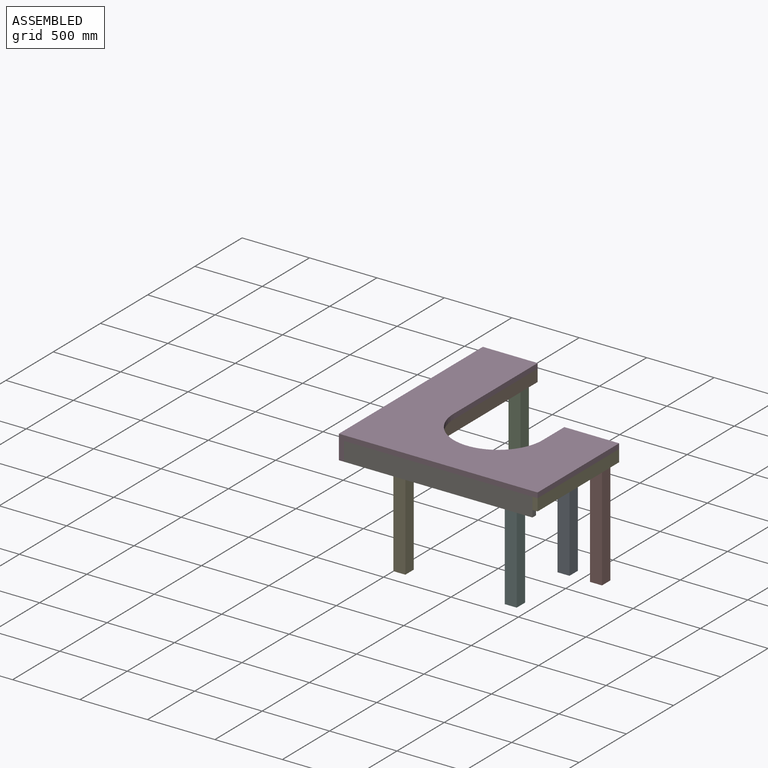
[diagram: assembled view]
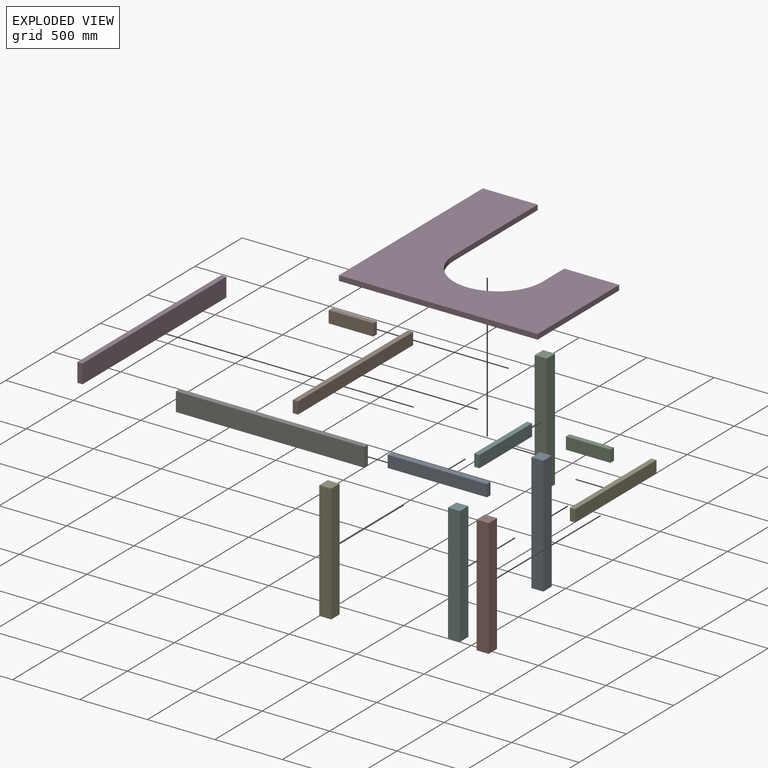
[diagram: exploded view]
GUIDED TOUR — MATED ASSEMBLY (Onshape document 863e2e0de1fe9f360ce83798, AutoMate assembly 863e2e0de1fe9f360ce83798_d64756f79ffccb4eee5b5655_c4ad5a41640e280d9338c394_default)

This assembly has 14 components, labeled P0..P13 below (a component is one placed occurrence of a part; the same part can appear more than once), held together by 13 mates. A mate is a constraint between two components; its type names the relative motion it leaves free:
  FASTENED — locks the two components together rigidly (no relative motion).
Axis/direction vectors are unit vectors and 'through' points are millimeter coordinates, both in the assembly's world frame.

MATES
  1. FASTENED "Fastened 6": P13 <-> P8, direction (0.000, -1.000, 0.000) through (368.30, -330.20, -88.90) mm
  2. FASTENED "Fastened 8": P8 <-> P1, direction (0.000, 1.000, 0.000) through (-368.30, -330.20, -88.90) mm
  3. FASTENED "Fastened 2": P11 <-> P6, direction (1.000, 0.000, 0.000) through (-698.50, -635.00, 0.00) mm
  4. FASTENED "Fastened 15": P8 <-> P5, direction (0.000, -1.000, 0.000) through (368.30, -368.30, 0.00) mm
  5. FASTENED "Fastened 10": P2 <-> P7, direction (0.000, -1.000, 0.000) through (698.50, 190.50, 0.00) mm
  6. FASTENED "Fastened 11": P9 <-> P10, direction (0.000, -1.000, 0.000) through (-368.30, 850.90, 0.00) mm
  7. FASTENED "Fastened 4": P4 <-> P2, direction (-1.000, 0.000, 0.000) through (698.50, 228.60, 0.00) mm
  8. FASTENED "Fastened 16": P8 <-> P12, direction (0.000, -1.000, 0.000) through (-368.30, -368.30, 0.00) mm
  9. FASTENED "Fastened 1": P11 <-> P3, direction (0.000, 0.000, 1.000) through (-736.60, -635.00, 0.00) mm
  10. FASTENED "Fastened 5": P2 <-> P13, direction (-1.000, 0.000, 0.000) through (368.30, 228.60, 0.00) mm
  11. FASTENED "Fastened 3": P6 <-> P4, direction (1.000, 0.000, 0.000) through (698.50, -635.00, 0.00) mm
  12. FASTENED "Fastened 9": P2 <-> P0, direction (0.000, -1.000, 0.000) through (368.30, 190.50, 0.00) mm
  13. FASTENED "Fastened 7": P9 <-> P1, direction (1.000, 0.000, 0.000) through (-368.30, 889.00, -88.90) mm

ASSEMBLY ORDER
  1. P2 — the base component [order verified]
  2. P0 [order verified]
  3. P13 [order verified]
  4. P4 [order verified]
  5. P9 [order verified]
  6. P10 [order verified]
  7. P7 [order verified]
  8. P8 [order verified]
  9. P12 [order verified]
  10. P5 [order verified]
  11. P6 [order verified]
  12. P1 [order verified]
  13. P11 [order verified]
  14. P3 [order verified]
Order-tag legend:
  [order verified] — this step's position reverses a verified removal order: the component was checked to insert without passing through the ones already placed.

Of the 14 components, 14 carry the full construction recipe — the FeatureScript program that regenerates the part's solid from scratch; the rest are supplied as boundary geometry only.
Because this assembly has more than 12 components, the tour below covers the 12 most significant ones individually (every recipe-attached component first, then the largest by part volume), in assembly order; the remaining 2 are summarized together in a grouped section at the end.
Each toured component is shown spotlighted twice — in the assembled view, then in the exploded view, where a leader line traces a displaced component back to its assembled socket (saturated green if recipe-attached, orange if geometry-only; every other component desaturated gray) — followed by its recipe or geometry summary and the mates that hold it.
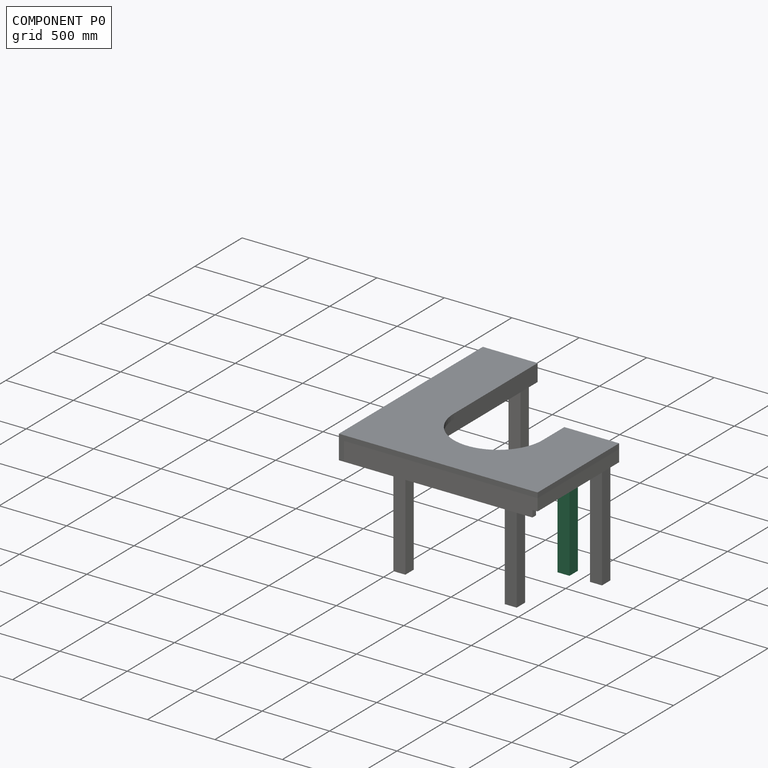
[diagram: component P0 — assembled]
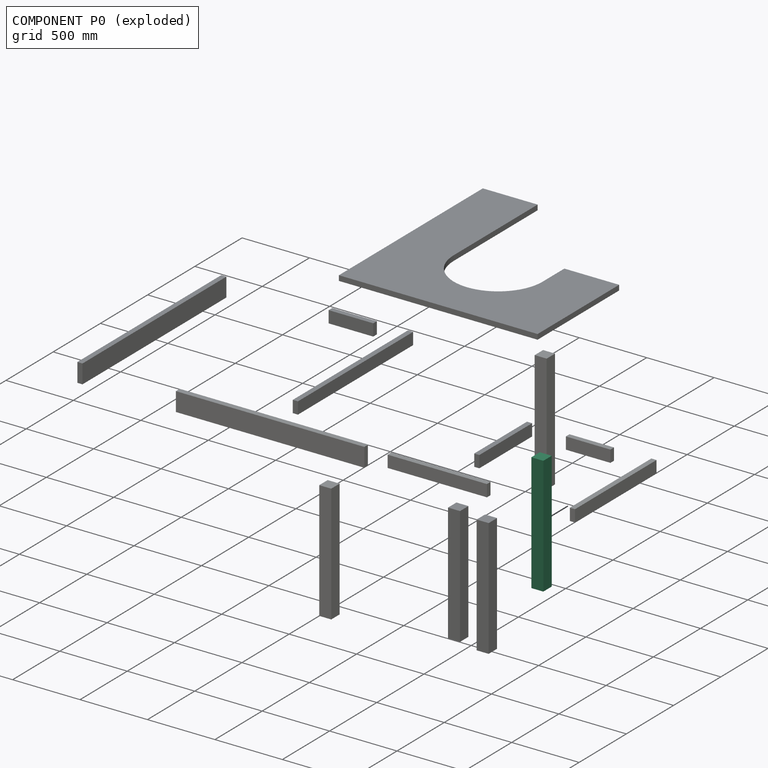
[diagram: component P0 — exploded]
COMPONENT P0 — recipe-attached (CADFS 00414338, mesh-verified: the recipe's output STEP matches this component's geometry to below the mesh-comparison resolution (tessellation chordal tolerance ~1.33 mm)).
Held by: FASTENED mate "Fastened 9" to P2.
Construction recipe (FeatureScript — the CAD program that rebuilds this solid; sketch coordinates are in the units given by the * unit suffixes, e.g. mm):

FeatureScript 1511;
import(path : "onshape/std/geometry.fs", version : "1511.0");
import(path : "onshape/std/common.fs", version : "1511.0");
const mm = millimeter;
const VERTEX = EntityType.VERTEX;
const EDGE = EntityType.EDGE;
const FACE = EntityType.FACE;
const BODY = EntityType.BODY;
function v(x, y){return vector(x, y);}
function OD(order){return orderDisambiguation(order);}
function OSD(set){return originalSetDisambiguation(set);}
function TD(topology){return topologyDisambiguation(topology);}
function TDD(query){return trueDependencyDisambiguation(query);}
function sQuery(a, b, c) {return sketchEntityQuery(a, b, c);}

annotation { "Feature Type Name" : "Feature", "Feature Type Description" : "" }
export const myFeature = defineFeature(function(context is Context, id is Id, definition is map)
    precondition{}
    {
        {
            var Q0;
            Q0=qCreatedBy(makeId("Top.planeOp"),FACE);
            var sketch = newSketch(context, id + "F0", { "sketchPlane" : qUnion([Q0])});
            skLineSegment(sketch, "E0.bottom", {"start": v(44.45, 44.45) * mm, "end": v(-44.45, 44.45) * mm});
            skLineSegment(sketch, "E0.top", {"start": v(44.45, -44.45) * mm, "end": v(-44.45, -44.45) * mm});
            skLineSegment(sketch, "E0.left", {"start": v(44.45, 44.45) * mm, "end": v(44.45, -44.45) * mm});
            skLineSegment(sketch, "E0.right", {"start": v(-44.45, 44.45) * mm, "end": v(-44.45, -44.45) * mm});
            skPoint(sketch, "E0.middle", {"position": v(0, 0) * mm});
            skSolve(sketch);
        }
        {
            var Q0;
            Q0 = qSketchRegion(id + "F0", true);
            extrude(context, id + "F1", {"entities" : qUnion([Q0]), "depth" : 876.3 * mm});
        }
    });
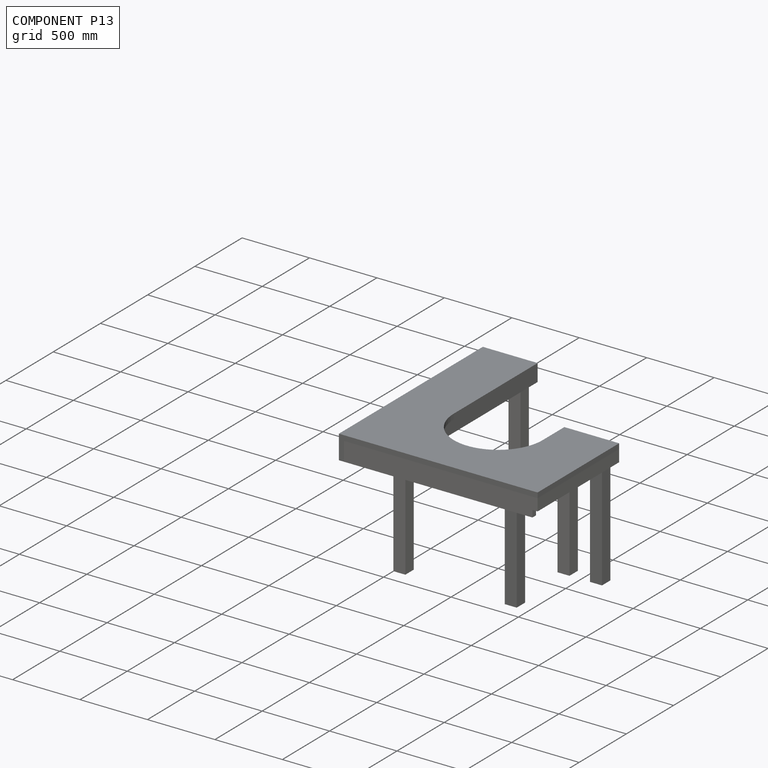
[diagram: component P13 — assembled]
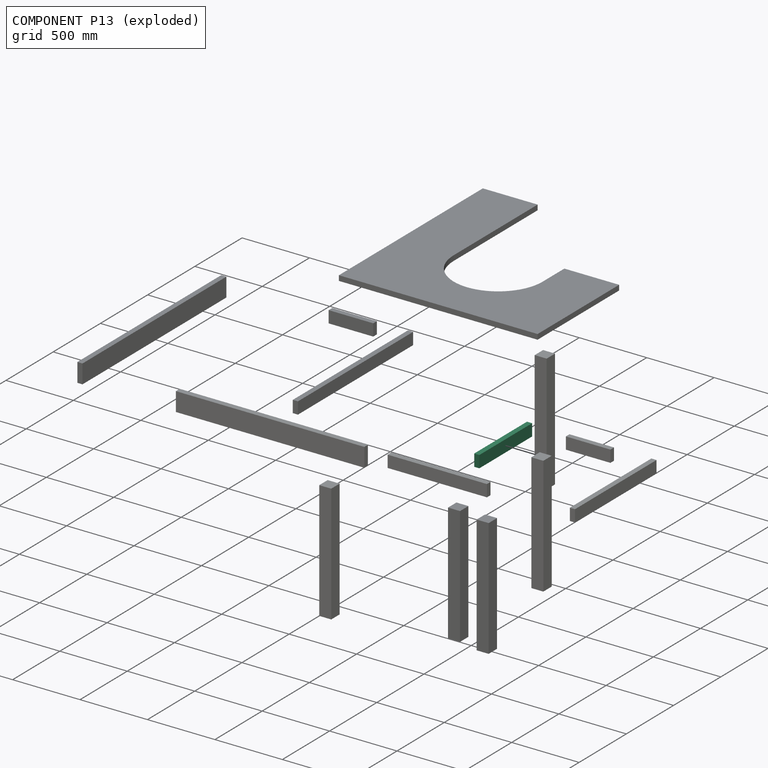
[diagram: component P13 — exploded]
COMPONENT P13 — recipe-attached (CADFS 00414335, mesh-verified: the recipe's output STEP matches this component's geometry to below the mesh-comparison resolution (tessellation chordal tolerance ~0.851 mm)).
Held by: FASTENED mate "Fastened 6" to P8; FASTENED mate "Fastened 5" to P2.
Construction recipe (FeatureScript — the CAD program that rebuilds this solid; sketch coordinates are in the units given by the * unit suffixes, e.g. mm):

FeatureScript 1511;
import(path : "onshape/std/geometry.fs", version : "1511.0");
import(path : "onshape/std/common.fs", version : "1511.0");
const mm = millimeter;
const VERTEX = EntityType.VERTEX;
const EDGE = EntityType.EDGE;
const FACE = EntityType.FACE;
const BODY = EntityType.BODY;
function v(x, y){return vector(x, y);}
function OD(order){return orderDisambiguation(order);}
function OSD(set){return originalSetDisambiguation(set);}
function TD(topology){return topologyDisambiguation(topology);}
function TDD(query){return trueDependencyDisambiguation(query);}
function sQuery(a, b, c) {return sketchEntityQuery(a, b, c);}

annotation { "Feature Type Name" : "Feature", "Feature Type Description" : "" }
export const myFeature = defineFeature(function(context is Context, id is Id, definition is map)
    precondition{}
    {
        {
            var Q0;
            Q0=qCreatedBy(makeId("Top.planeOp"),FACE);
            var sketch = newSketch(context, id + "F0", { "sketchPlane" : qUnion([Q0])});
            skLineSegment(sketch, "E0.bottom", {"start": v(-19.05, -279.4) * mm, "end": v(19.05, -279.4) * mm});
            skLineSegment(sketch, "E0.top", {"start": v(-19.05, 279.4) * mm, "end": v(19.05, 279.4) * mm});
            skLineSegment(sketch, "E0.left", {"start": v(-19.05, -279.4) * mm, "end": v(-19.05, 279.4) * mm});
            skLineSegment(sketch, "E0.right", {"start": v(19.05, -279.4) * mm, "end": v(19.05, 279.4) * mm});
            skPoint(sketch, "E0.middle", {"position": v(0, 0) * mm});
            skSolve(sketch);
        }
        {
            var Q0;
            Q0 = qSketchRegion(id + "F0", true);
            extrude(context, id + "F1", {"entities" : qUnion([Q0]), "depth" : 88.9 * mm});
        }
    });
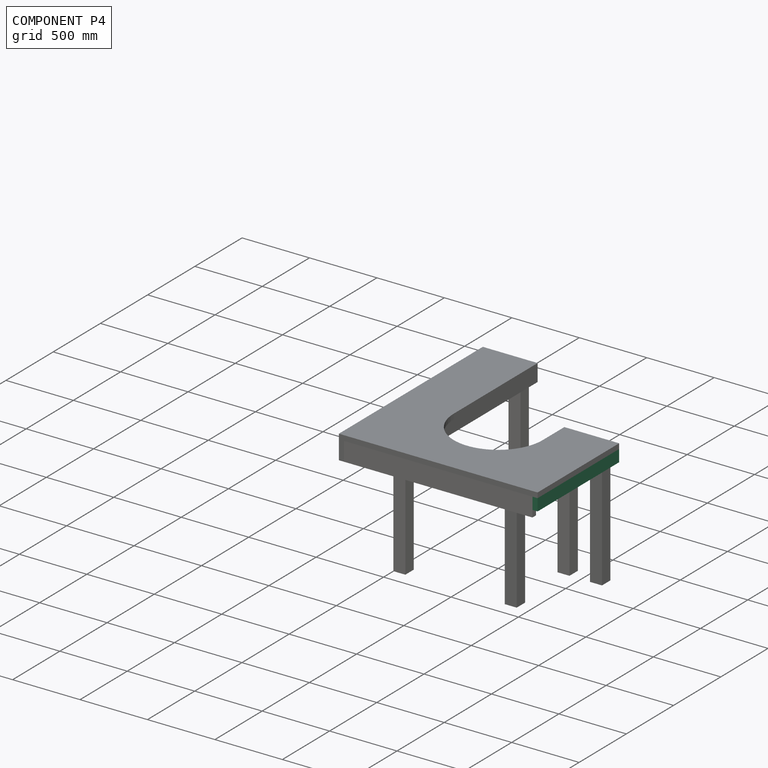
[diagram: component P4 — assembled]
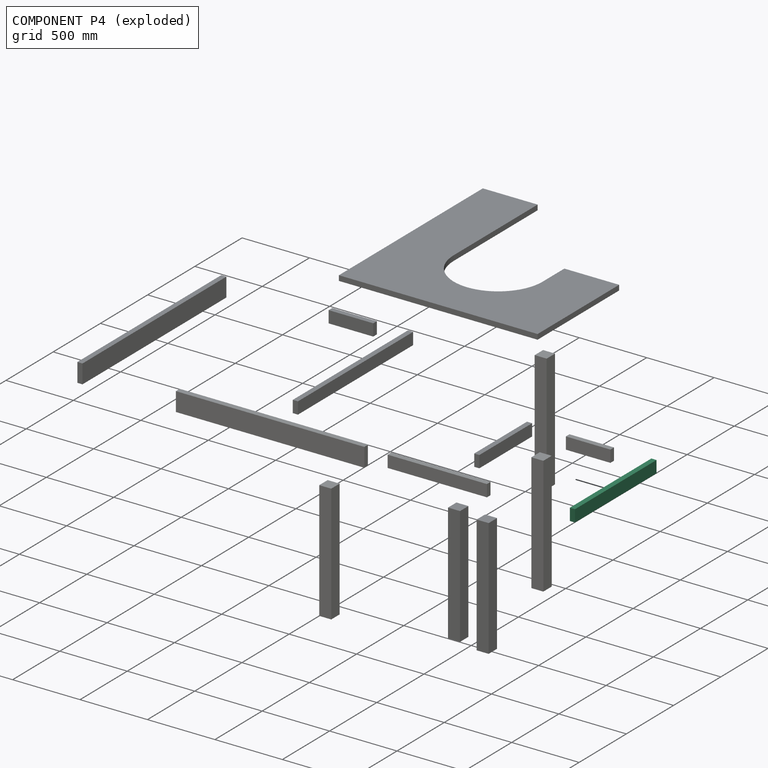
[diagram: component P4 — exploded]
COMPONENT P4 — recipe-attached (CADFS 00414333, mesh-verified: the recipe's output STEP matches this component's geometry to below the mesh-comparison resolution (tessellation chordal tolerance ~1.3 mm)).
Held by: FASTENED mate "Fastened 4" to P2; FASTENED mate "Fastened 3" to P6.
Construction recipe (FeatureScript — the CAD program that rebuilds this solid; sketch coordinates are in the units given by the * unit suffixes, e.g. mm):

FeatureScript 1511;
import(path : "onshape/std/geometry.fs", version : "1511.0");
import(path : "onshape/std/common.fs", version : "1511.0");
const mm = millimeter;
const VERTEX = EntityType.VERTEX;
const EDGE = EntityType.EDGE;
const FACE = EntityType.FACE;
const BODY = EntityType.BODY;
function v(x, y){return vector(x, y);}
function OD(order){return orderDisambiguation(order);}
function OSD(set){return originalSetDisambiguation(set);}
function TD(topology){return topologyDisambiguation(topology);}
function TDD(query){return trueDependencyDisambiguation(query);}
function sQuery(a, b, c) {return sketchEntityQuery(a, b, c);}

annotation { "Feature Type Name" : "Feature", "Feature Type Description" : "" }
export const myFeature = defineFeature(function(context is Context, id is Id, definition is map)
    precondition{}
    {
        {
            var Q0;
            Q0=qCreatedBy(makeId("Top.planeOp"),FACE);
            var sketch = newSketch(context, id + "F0", { "sketchPlane" : qUnion([Q0])});
            skLineSegment(sketch, "E0.bottom", {"start": v(-19.05, 431.8) * mm, "end": v(19.05, 431.8) * mm});
            skLineSegment(sketch, "E0.top", {"start": v(-19.05, -431.8) * mm, "end": v(19.05, -431.8) * mm});
            skLineSegment(sketch, "E0.left", {"start": v(-19.05, 431.8) * mm, "end": v(-19.05, -431.8) * mm});
            skLineSegment(sketch, "E0.right", {"start": v(19.05, 431.8) * mm, "end": v(19.05, -431.8) * mm});
            skPoint(sketch, "E0.middle", {"position": v(0, 0) * mm});
            skSolve(sketch);
        }
        {
            var Q0;
            Q0 = qSketchRegion(id + "F0", true);
            extrude(context, id + "F1", {"entities" : qUnion([Q0]), "depth" : 88.9 * mm});
        }
    });
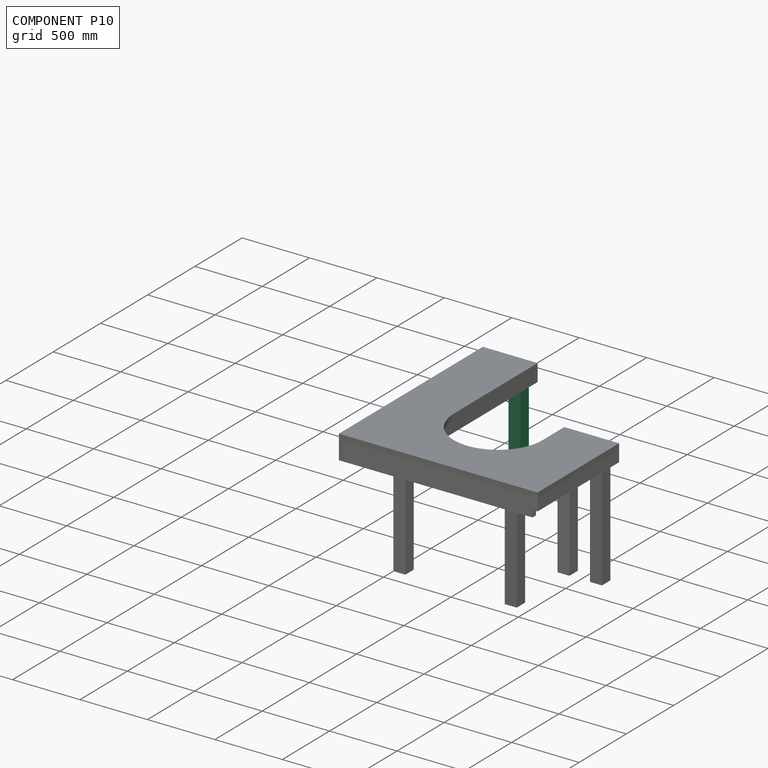
[diagram: component P10 — assembled]
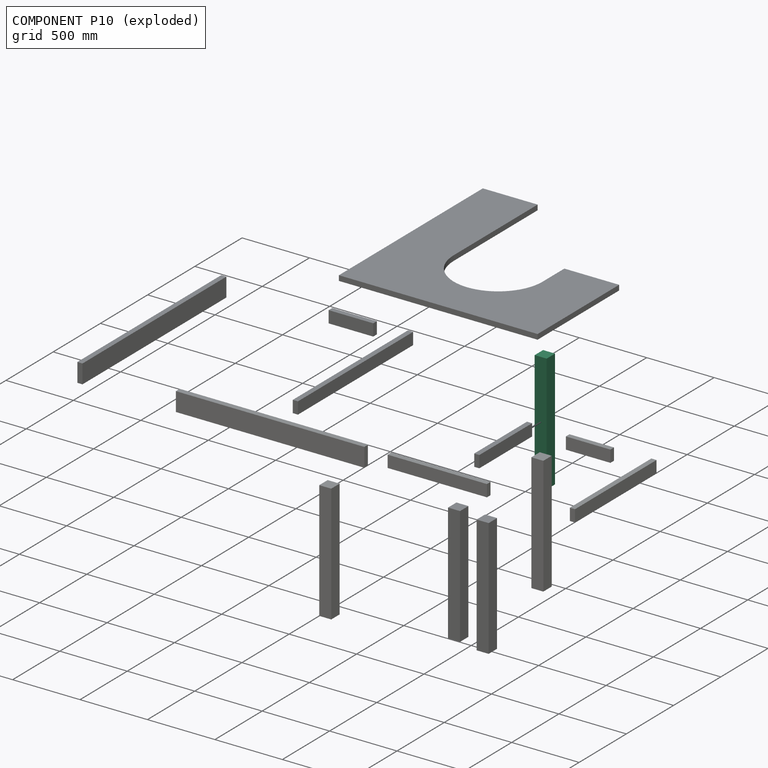
[diagram: component P10 — exploded]
COMPONENT P10 — same part as P0 (CADFS 00414338); its construction recipe is shown at P0.
Held by: FASTENED mate "Fastened 11" to P9.
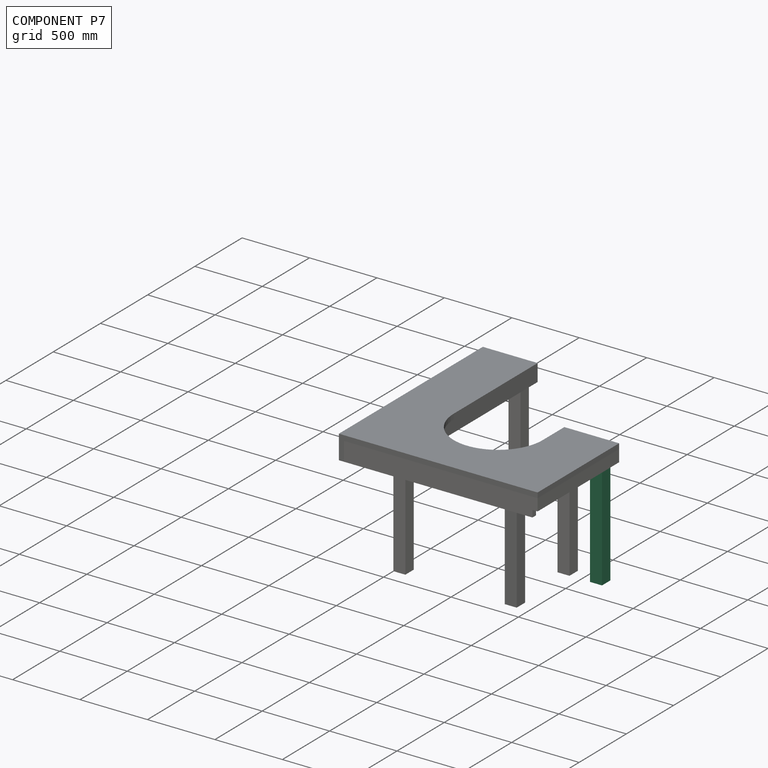
[diagram: component P7 — assembled]
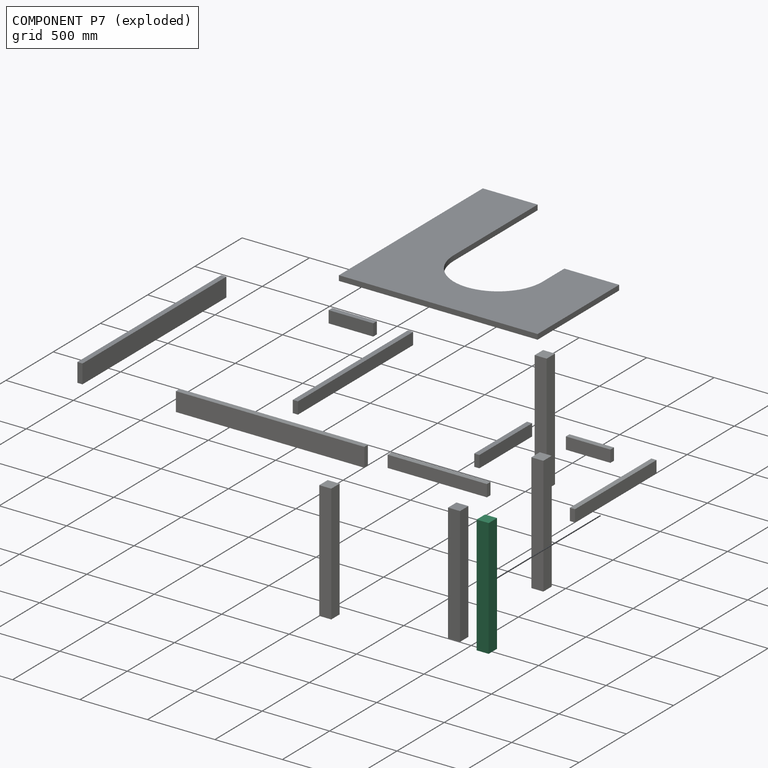
[diagram: component P7 — exploded]
COMPONENT P7 — same part as P0 (CADFS 00414338); its construction recipe is shown at P0.
Held by: FASTENED mate "Fastened 10" to P2.
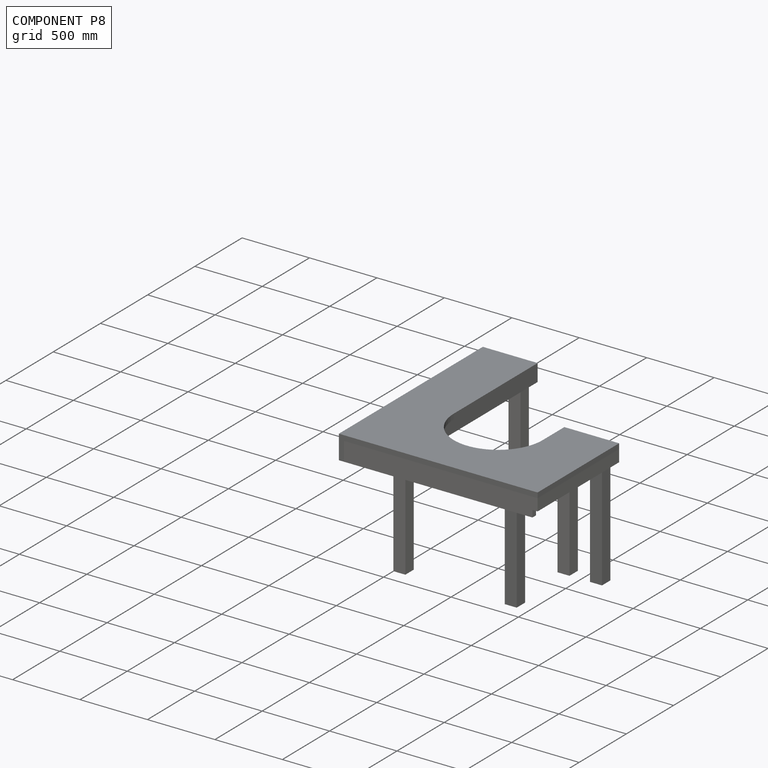
[diagram: component P8 — assembled]
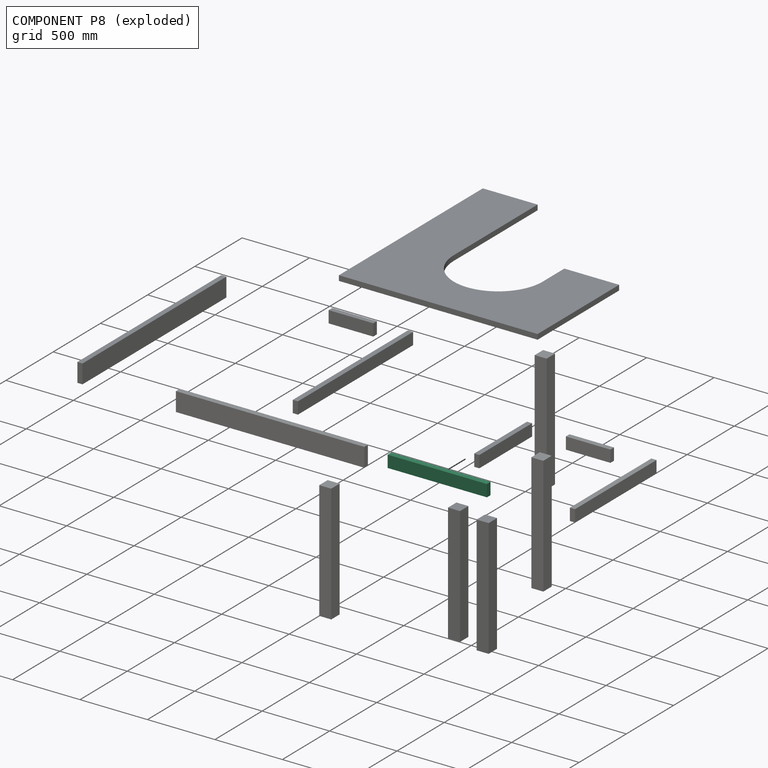
[diagram: component P8 — exploded]
COMPONENT P8 — recipe-attached (CADFS 00414337, mesh-verified: the recipe's output STEP matches this component's geometry to below the mesh-comparison resolution (tessellation chordal tolerance ~1.11 mm)).
Held by: FASTENED mate "Fastened 6" to P13; FASTENED mate "Fastened 8" to P1; FASTENED mate "Fastened 15" to P5; FASTENED mate "Fastened 16" to P12.
Construction recipe (FeatureScript — the CAD program that rebuilds this solid; sketch coordinates are in the units given by the * unit suffixes, e.g. mm):

FeatureScript 1511;
import(path : "onshape/std/geometry.fs", version : "1511.0");
import(path : "onshape/std/common.fs", version : "1511.0");
const mm = millimeter;
const VERTEX = EntityType.VERTEX;
const EDGE = EntityType.EDGE;
const FACE = EntityType.FACE;
const BODY = EntityType.BODY;
function v(x, y){return vector(x, y);}
function OD(order){return orderDisambiguation(order);}
function OSD(set){return originalSetDisambiguation(set);}
function TD(topology){return topologyDisambiguation(topology);}
function TDD(query){return trueDependencyDisambiguation(query);}
function sQuery(a, b, c) {return sketchEntityQuery(a, b, c);}

annotation { "Feature Type Name" : "Feature", "Feature Type Description" : "" }
export const myFeature = defineFeature(function(context is Context, id is Id, definition is map)
    precondition{}
    {
        {
            var Q0;
            Q0=qCreatedBy(makeId("Top.planeOp"),FACE);
            var sketch = newSketch(context, id + "F0", { "sketchPlane" : qUnion([Q0])});
            skLineSegment(sketch, "E0.bottom", {"start": v(368.3, 19.05) * mm, "end": v(-368.3, 19.05) * mm});
            skLineSegment(sketch, "E0.top", {"start": v(368.3, -19.05) * mm, "end": v(-368.3, -19.05) * mm});
            skLineSegment(sketch, "E0.left", {"start": v(368.3, 19.05) * mm, "end": v(368.3, -19.05) * mm});
            skLineSegment(sketch, "E0.right", {"start": v(-368.3, 19.05) * mm, "end": v(-368.3, -19.05) * mm});
            skPoint(sketch, "E0.middle", {"position": v(0, 0) * mm});
            skSolve(sketch);
        }
        {
            var Q0;
            Q0 = qSketchRegion(id + "F0", true);
            extrude(context, id + "F1", {"entities" : qUnion([Q0]), "depth" : 88.9 * mm});
        }
    });
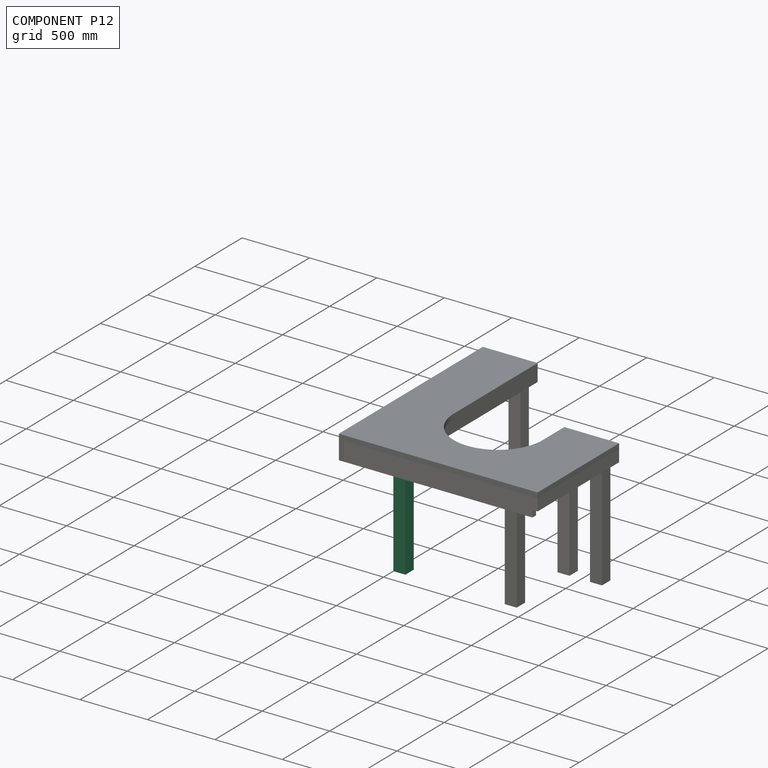
[diagram: component P12 — assembled]
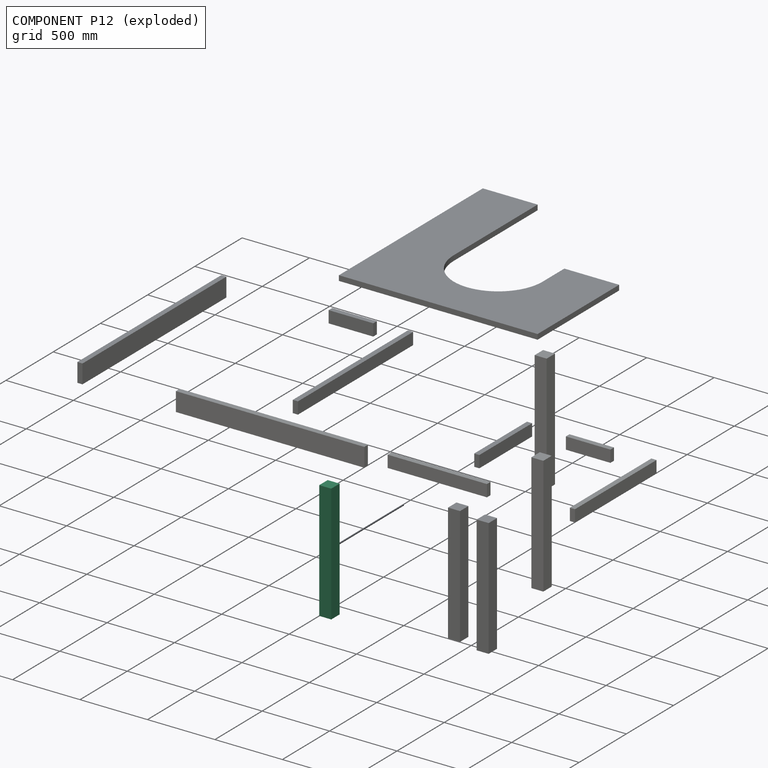
[diagram: component P12 — exploded]
COMPONENT P12 — same part as P0 (CADFS 00414338); its construction recipe is shown at P0.
Held by: FASTENED mate "Fastened 16" to P8.
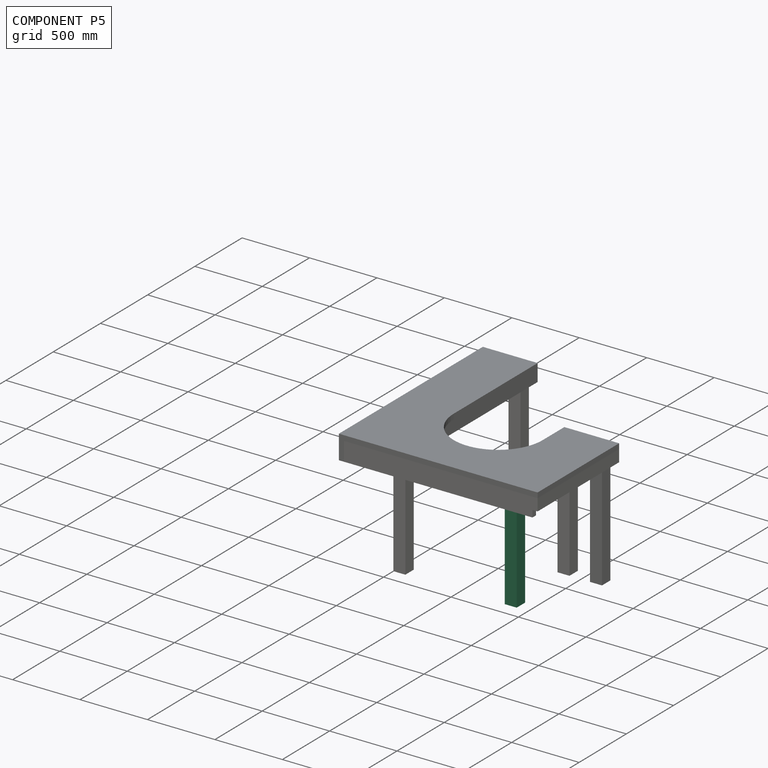
[diagram: component P5 — assembled]
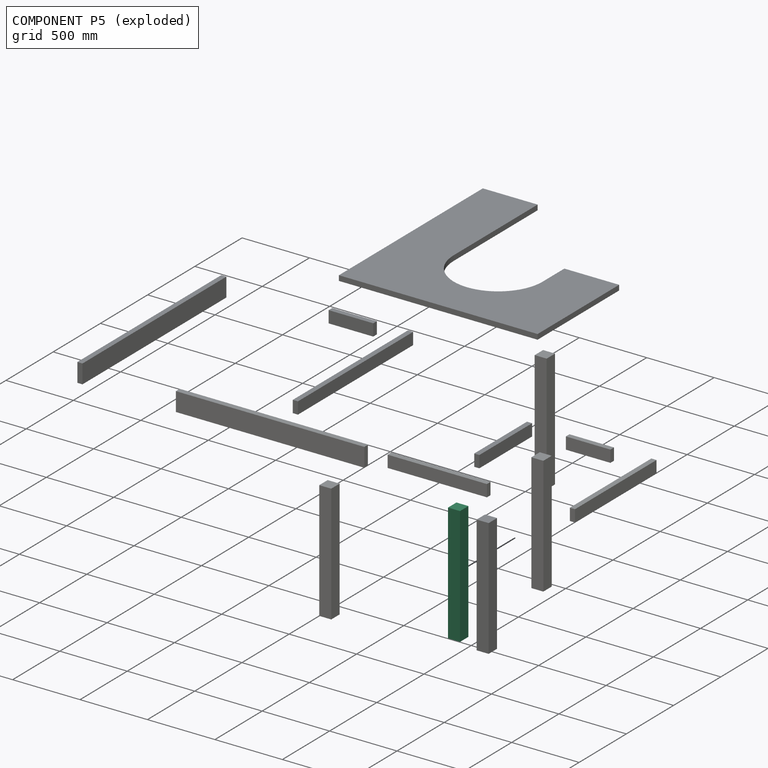
[diagram: component P5 — exploded]
COMPONENT P5 — same part as P0 (CADFS 00414338); its construction recipe is shown at P0.
Held by: FASTENED mate "Fastened 15" to P8.
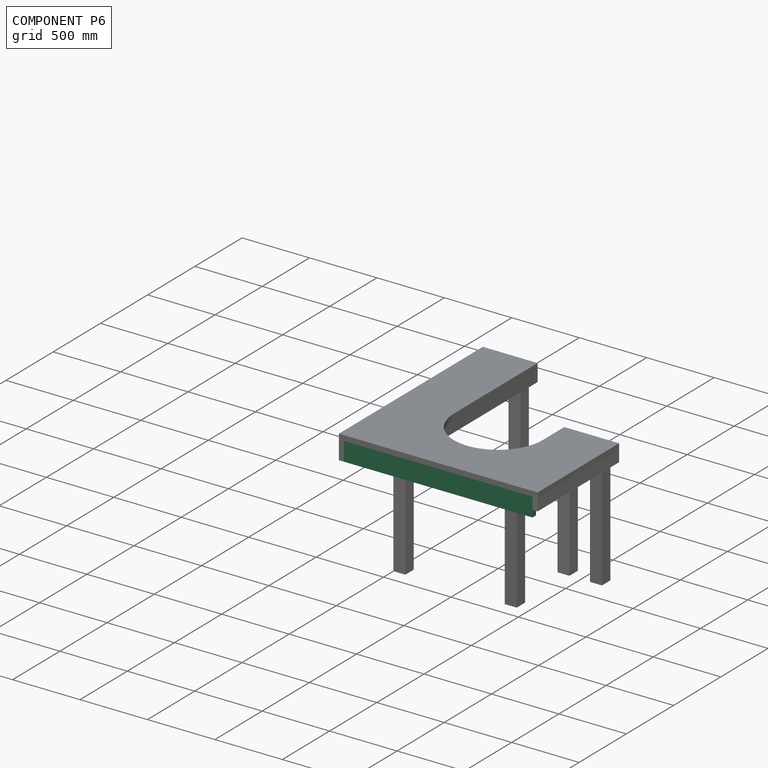
[diagram: component P6 — assembled]
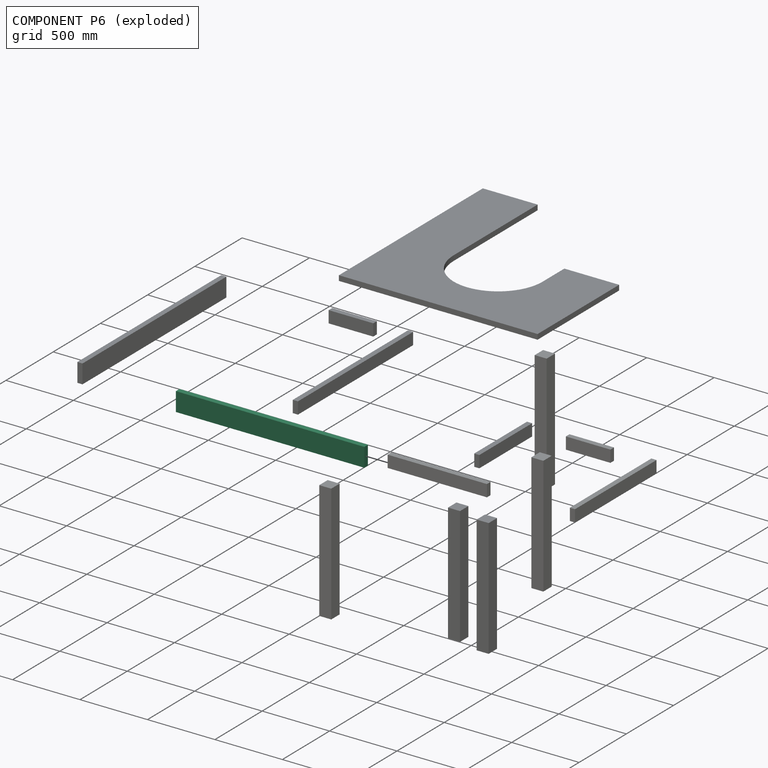
[diagram: component P6 — exploded]
COMPONENT P6 — recipe-attached (CADFS 00414332, mesh-verified: the recipe's output STEP matches this component's geometry to below the mesh-comparison resolution (tessellation chordal tolerance ~2.11 mm)).
Held by: FASTENED mate "Fastened 2" to P11; FASTENED mate "Fastened 3" to P4.
Construction recipe (FeatureScript — the CAD program that rebuilds this solid; sketch coordinates are in the units given by the * unit suffixes, e.g. mm):

FeatureScript 1511;
import(path : "onshape/std/geometry.fs", version : "1511.0");
import(path : "onshape/std/common.fs", version : "1511.0");
const mm = millimeter;
const VERTEX = EntityType.VERTEX;
const EDGE = EntityType.EDGE;
const FACE = EntityType.FACE;
const BODY = EntityType.BODY;
function v(x, y){return vector(x, y);}
function OD(order){return orderDisambiguation(order);}
function OSD(set){return originalSetDisambiguation(set);}
function TD(topology){return topologyDisambiguation(topology);}
function TDD(query){return trueDependencyDisambiguation(query);}
function sQuery(a, b, c) {return sketchEntityQuery(a, b, c);}

annotation { "Feature Type Name" : "Feature", "Feature Type Description" : "" }
export const myFeature = defineFeature(function(context is Context, id is Id, definition is map)
    precondition{}
    {
        {
            var Q0;
            Q0=qCreatedBy(makeId("Top.planeOp"),FACE);
            var sketch = newSketch(context, id + "F0", { "sketchPlane" : qUnion([Q0])});
            skLineSegment(sketch, "E0.bottom", {"start": v(698.5, 19.05) * mm, "end": v(-698.5, 19.05) * mm});
            skLineSegment(sketch, "E0.top", {"start": v(698.5, -19.05) * mm, "end": v(-698.5, -19.05) * mm});
            skLineSegment(sketch, "E0.left", {"start": v(698.5, 19.05) * mm, "end": v(698.5, -19.05) * mm});
            skLineSegment(sketch, "E0.right", {"start": v(-698.5, 19.05) * mm, "end": v(-698.5, -19.05) * mm});
            skPoint(sketch, "E0.middle", {"position": v(0, 0) * mm});
            skSolve(sketch);
        }
        {
            var Q0;
            Q0 = qSketchRegion(id + "F0", true);
            extrude(context, id + "F1", {"entities" : qUnion([Q0]), "depth" : 139.7 * mm});
        }
    });
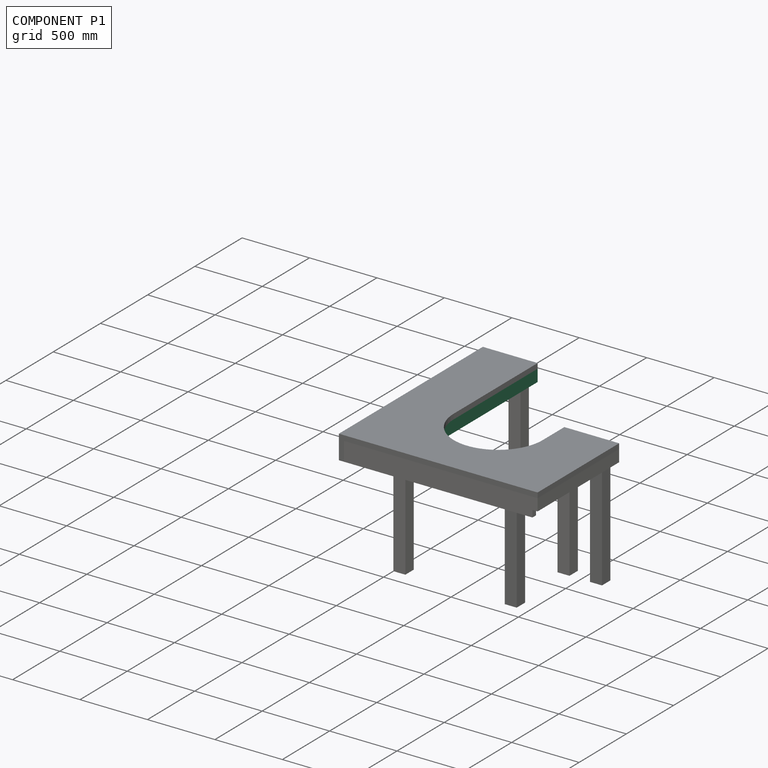
[diagram: component P1 — assembled]
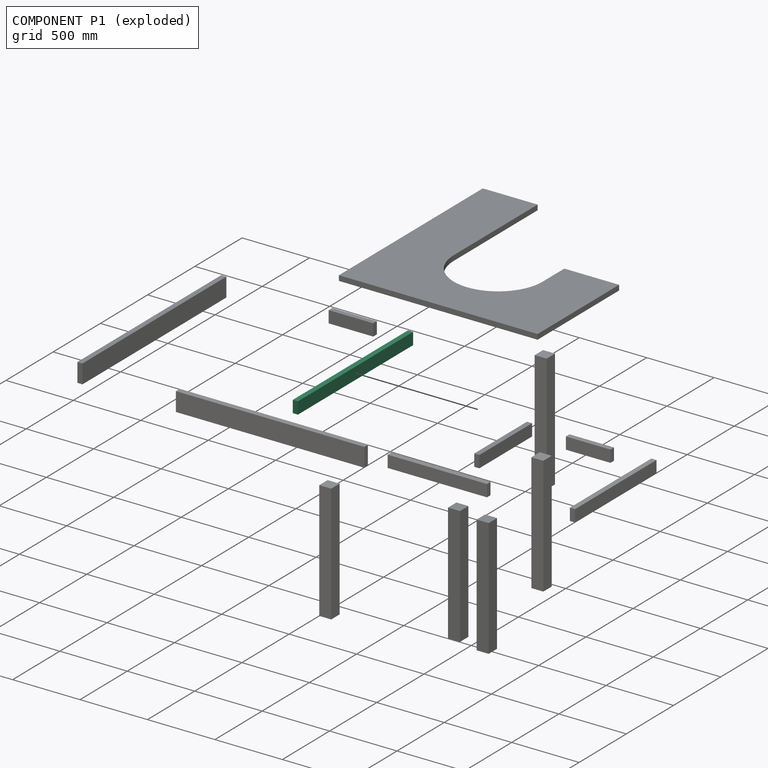
[diagram: component P1 — exploded]
COMPONENT P1 — recipe-attached (CADFS 00414336, mesh-verified: the recipe's output STEP matches this component's geometry to below the mesh-comparison resolution (tessellation chordal tolerance ~1.83 mm)).
Held by: FASTENED mate "Fastened 8" to P8; FASTENED mate "Fastened 7" to P9.
Construction recipe (FeatureScript — the CAD program that rebuilds this solid; sketch coordinates are in the units given by the * unit suffixes, e.g. mm):

FeatureScript 1511;
import(path : "onshape/std/geometry.fs", version : "1511.0");
import(path : "onshape/std/common.fs", version : "1511.0");
const mm = millimeter;
const VERTEX = EntityType.VERTEX;
const EDGE = EntityType.EDGE;
const FACE = EntityType.FACE;
const BODY = EntityType.BODY;
function v(x, y){return vector(x, y);}
function OD(order){return orderDisambiguation(order);}
function OSD(set){return originalSetDisambiguation(set);}
function TD(topology){return topologyDisambiguation(topology);}
function TDD(query){return trueDependencyDisambiguation(query);}
function sQuery(a, b, c) {return sketchEntityQuery(a, b, c);}

annotation { "Feature Type Name" : "Feature", "Feature Type Description" : "" }
export const myFeature = defineFeature(function(context is Context, id is Id, definition is map)
    precondition{}
    {
        {
            var Q0;
            Q0=qCreatedBy(makeId("Top.planeOp"),FACE);
            var sketch = newSketch(context, id + "F0", { "sketchPlane" : qUnion([Q0])});
            skLineSegment(sketch, "E0.bottom", {"start": v(-19.05, 609.6) * mm, "end": v(19.05, 609.6) * mm});
            skLineSegment(sketch, "E0.top", {"start": v(-19.05, -609.6) * mm, "end": v(19.05, -609.6) * mm});
            skLineSegment(sketch, "E0.left", {"start": v(-19.05, 609.6) * mm, "end": v(-19.05, -609.6) * mm});
            skLineSegment(sketch, "E0.right", {"start": v(19.05, 609.6) * mm, "end": v(19.05, -609.6) * mm});
            skPoint(sketch, "E0.middle", {"position": v(0, 0) * mm});
            skSolve(sketch);
        }
        {
            var Q0;
            Q0 = qSketchRegion(id + "F0", true);
            extrude(context, id + "F1", {"entities" : qUnion([Q0]), "depth" : 88.9 * mm});
        }
    });
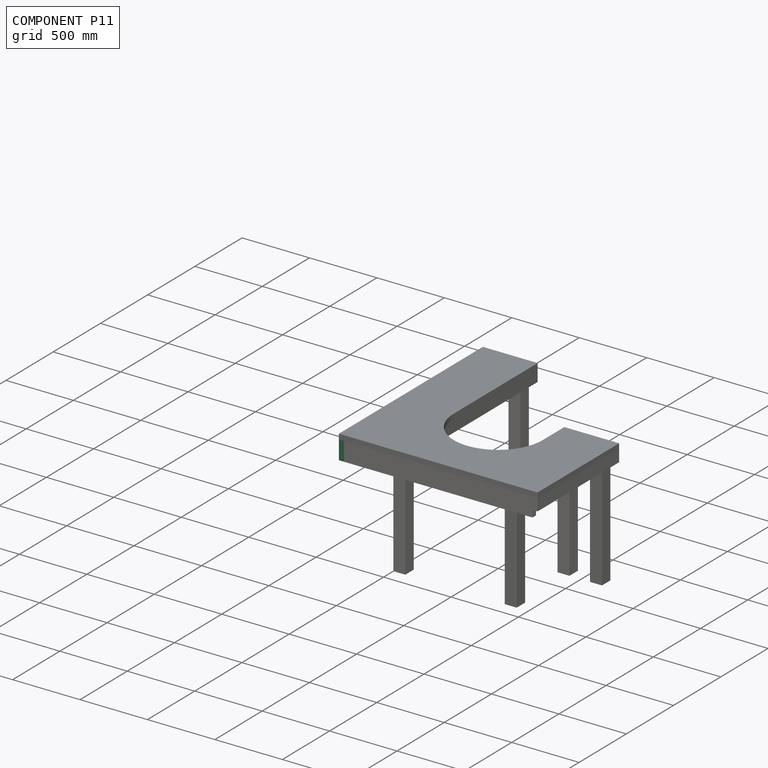
[diagram: component P11 — assembled]
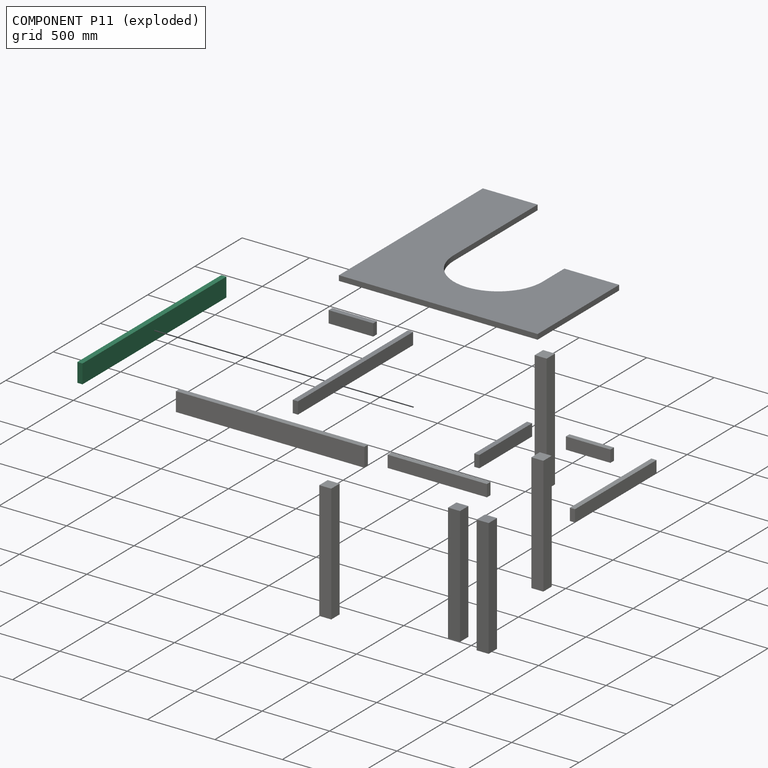
[diagram: component P11 — exploded]
COMPONENT P11 — recipe-attached (CADFS 00414331, mesh-verified: the recipe's output STEP matches this component's geometry to below the mesh-comparison resolution (tessellation chordal tolerance ~2.3 mm)).
Held by: FASTENED mate "Fastened 2" to P6; FASTENED mate "Fastened 1" to P3.
Construction recipe (FeatureScript — the CAD program that rebuilds this solid; sketch coordinates are in the units given by the * unit suffixes, e.g. mm):

FeatureScript 1511;
import(path : "onshape/std/geometry.fs", version : "1511.0");
import(path : "onshape/std/common.fs", version : "1511.0");
const mm = millimeter;
const VERTEX = EntityType.VERTEX;
const EDGE = EntityType.EDGE;
const FACE = EntityType.FACE;
const BODY = EntityType.BODY;
function v(x, y){return vector(x, y);}
function OD(order){return orderDisambiguation(order);}
function OSD(set){return originalSetDisambiguation(set);}
function TD(topology){return topologyDisambiguation(topology);}
function TDD(query){return trueDependencyDisambiguation(query);}
function sQuery(a, b, c) {return sketchEntityQuery(a, b, c);}

annotation { "Feature Type Name" : "Feature", "Feature Type Description" : "" }
export const myFeature = defineFeature(function(context is Context, id is Id, definition is map)
    precondition{}
    {
        {
            var Q0;
            Q0=qCreatedBy(makeId("Top.planeOp"),FACE);
            var sketch = newSketch(context, id + "F0", { "sketchPlane" : qUnion([Q0])});
            skLineSegment(sketch, "E0.bottom", {"start": v(19.05, 762) * mm, "end": v(-19.05, 762) * mm});
            skLineSegment(sketch, "E0.top", {"start": v(19.05, -762) * mm, "end": v(-19.05, -762) * mm});
            skLineSegment(sketch, "E0.left", {"start": v(19.05, 762) * mm, "end": v(19.05, -762) * mm});
            skLineSegment(sketch, "E0.right", {"start": v(-19.05, 762) * mm, "end": v(-19.05, -762) * mm});
            skPoint(sketch, "E0.middle", {"position": v(0, 0) * mm});
            skSolve(sketch);
        }
        {
            var Q0;
            Q0 = qSketchRegion(id + "F0", true);
            extrude(context, id + "F1", {"entities" : qUnion([Q0]), "depth" : 139.7 * mm});
        }
    });
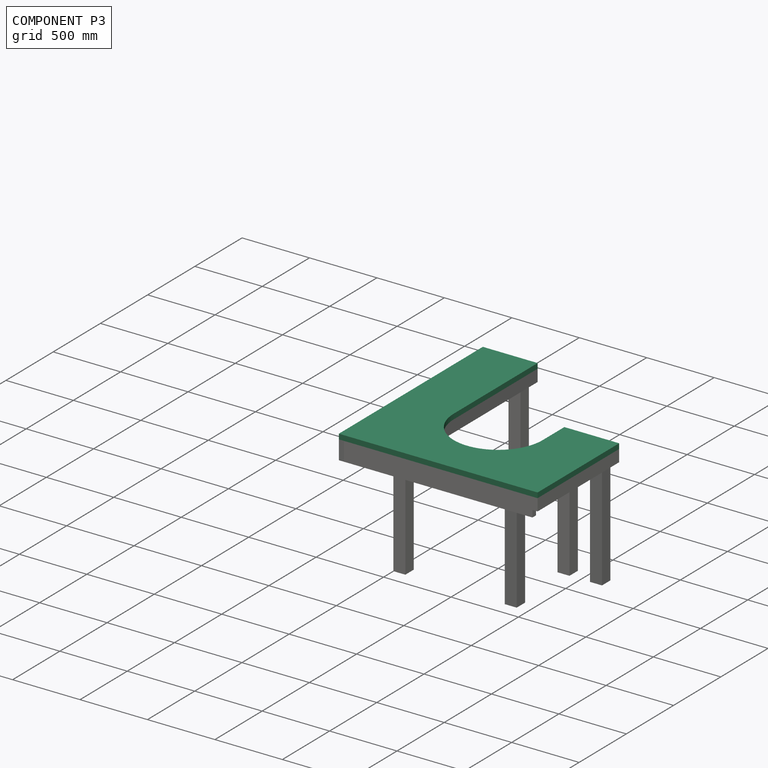
[diagram: component P3 — assembled]
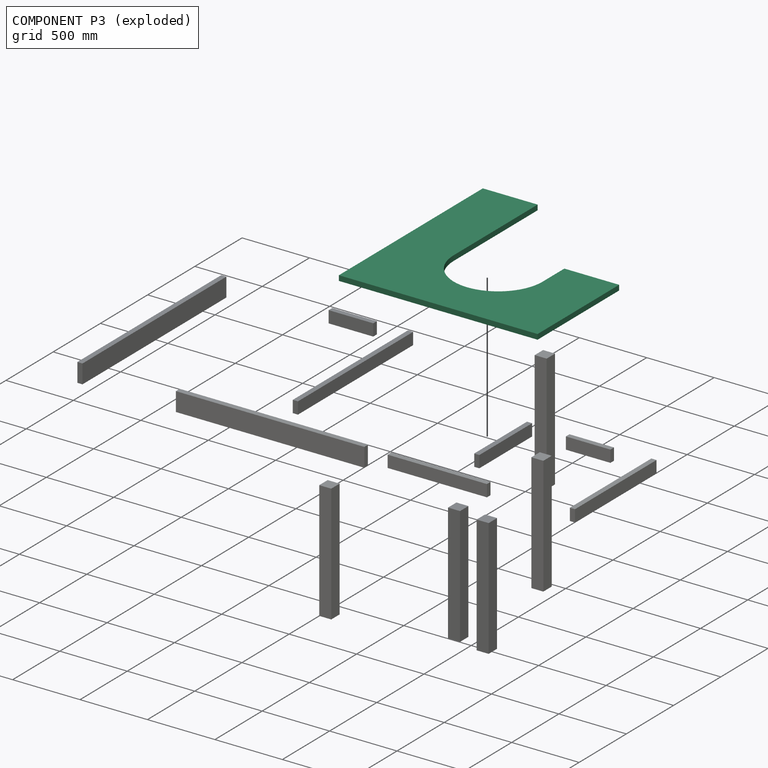
[diagram: component P3 — exploded]
COMPONENT P3 — recipe-attached (CADFS 00414330, mesh-verified: the recipe's output STEP matches this component's geometry to below the mesh-comparison resolution (tessellation chordal tolerance ~3.18 mm)).
Held by: FASTENED mate "Fastened 1" to P11.
Construction recipe (FeatureScript — the CAD program that rebuilds this solid; sketch coordinates are in the units given by the * unit suffixes, e.g. mm):

FeatureScript 1511;
import(path : "onshape/std/geometry.fs", version : "1511.0");
import(path : "onshape/std/common.fs", version : "1511.0");
const mm = millimeter;
const VERTEX = EntityType.VERTEX;
const EDGE = EntityType.EDGE;
const FACE = EntityType.FACE;
const BODY = EntityType.BODY;
function v(x, y){return vector(x, y);}
function OD(order){return orderDisambiguation(order);}
function OSD(set){return originalSetDisambiguation(set);}
function TD(topology){return topologyDisambiguation(topology);}
function TDD(query){return trueDependencyDisambiguation(query);}
function sQuery(a, b, c) {return sketchEntityQuery(a, b, c);}

annotation { "Feature Type Name" : "Feature", "Feature Type Description" : "" }
export const myFeature = defineFeature(function(context is Context, id is Id, definition is map)
    precondition{}
    {
        {
            var Q0;
            Q0=qCreatedBy(makeId("Top.planeOp"),FACE);
            var sketch = newSketch(context, id + "F0", { "sketchPlane" : qUnion([Q0])});
            skLineSegment(sketch, "E0", {"start": v(0, 0) * mm, "end": v(0, -330.2) * mm});
            skLineSegment(sketch, "E1", {"start": v(-330.2, 0) * mm, "end": v(-330.2, 889) * mm});
            skArc(sketch, "E2", {"start": v(-330.2, 0) * mm, "mid": v(0, -330.2) * mm, "end": v(330.2, 0) * mm});
            skLineSegment(sketch, "E3", {"start": v(-330.2, 889) * mm, "end": v(-736.6, 889) * mm});
            skLineSegment(sketch, "E4", {"start": v(-736.6, 889) * mm, "end": v(-736.6, -635) * mm});
            skLineSegment(sketch, "E5", {"start": v(-736.6, -635) * mm, "end": v(736.6, -635) * mm});
            skLineSegment(sketch, "E6", {"start": v(330.2, 0) * mm, "end": v(330.2, 228.6) * mm});
            skLineSegment(sketch, "E7", {"start": v(330.2, 228.6) * mm, "end": v(736.6, 228.6) * mm});
            skLineSegment(sketch, "E8", {"start": v(736.6, -635) * mm, "end": v(736.6, 228.6) * mm});
            skSolve(sketch);
        }
        {
            var Q0;
            {var subQ3=sQuery(id+"F0.wireOp",EDGE,"E1");Q0=makeQuery(id+"F0.imprint","IMPRINT",FACE,{"disambiguationData":[TD([[makeQuery(id+"F0.imprint","IMPRINT",EDGE,{"derivedFrom":subQ3}),1.0]])]});}
            extrude(context, id + "F1", {"entities" : qUnion([Q0]), "depth" : 38.1 * mm});
        }
    });
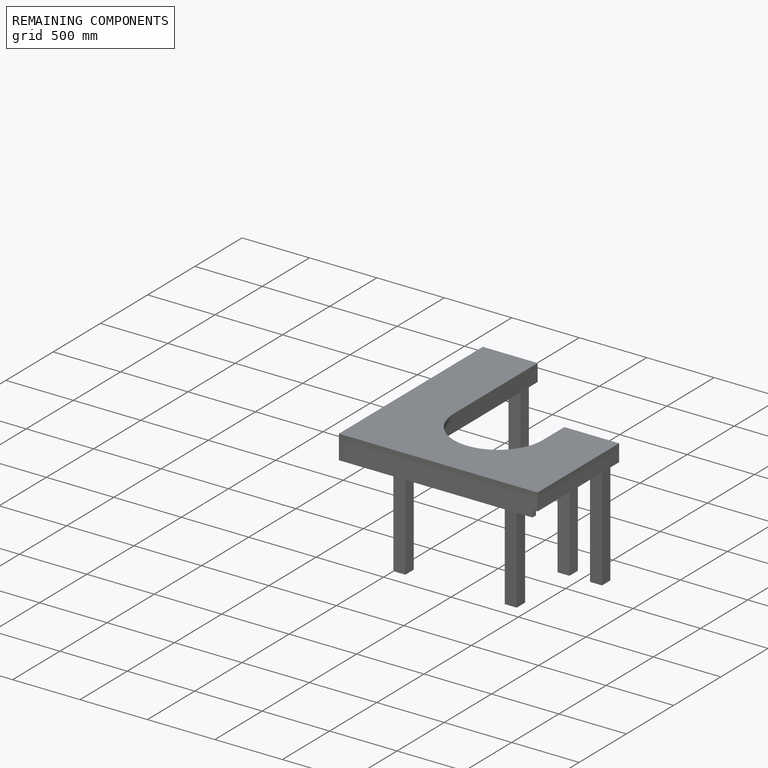
[diagram: remaining components — assembled]
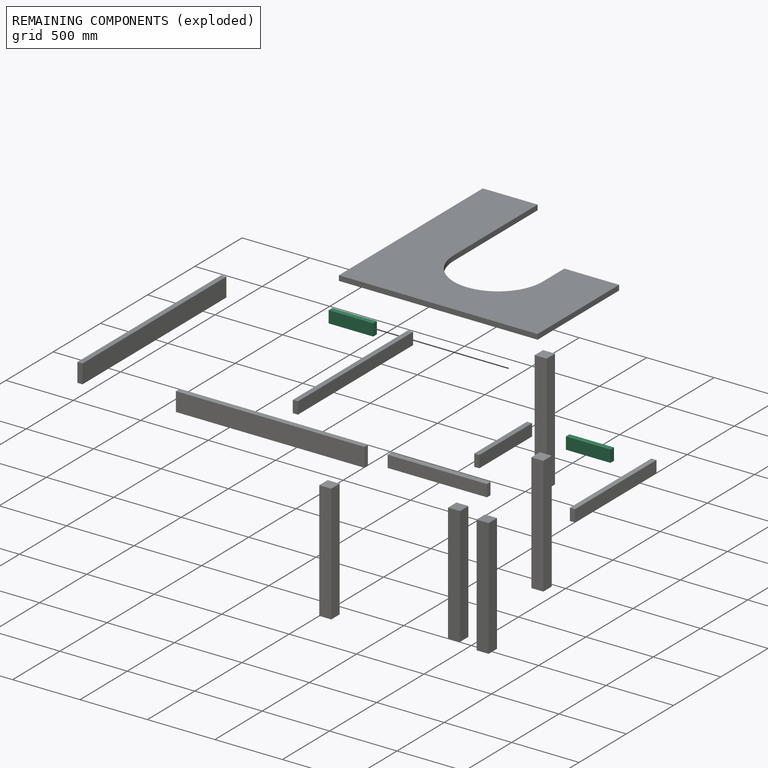
[diagram: remaining components — exploded]
REMAINING COMPONENTS (grouped) — the 2 components below fall outside the per-component tour by the significance rule stated above; both spotlight views highlight the whole group.
  P2: bounding box 330.2 x 88.9 x 38.1 mm, volume 1118417 mm^3. Recipe-attached (CADFS 00414334; recipe not printed under the significance rule). Held by: FASTENED mate "Fastened 10" to P7; FASTENED mate "Fastened 4" to P4; FASTENED mate "Fastened 5" to P13; FASTENED mate "Fastened 9" to P0.
  P9: bounding box 330.2 x 88.9 x 38.1 mm, volume 1118417 mm^3. Recipe-attached (CADFS 00414334; recipe not printed under the significance rule). Held by: FASTENED mate "Fastened 11" to P10; FASTENED mate "Fastened 7" to P1.
PROVENANCE & LICENSES
Assembly (occurrences, transforms, mates, per-part STEP geometry): AutoMate dataset, Zenodo record 7776208, CC0.
Construction recipes: CADFS (HuggingFace VladPyatov/CADFS, CC-BY-4.0, layered over the ABC dataset), FeatureScript reconstruction programs keyed by ABC model id.
Join: ABC meta listings map ABC model id -> Onshape documentId; within a shared document, parts are matched by geometric signature (bounding-box dims + volume at 0.1% relative tolerance, exact B-rep face/solid counts).
Verification: 14 of this assembly's 14 components carry a recipe attachment, and every attachment is mesh-verified: the CADFS STEP and the AutoMate member STEP were compared as meshes in their shared local frame (symmetric sampled-point-to-mesh distance); worst across the 14 attachments: below the mesh-comparison resolution (tessellation chordal tolerance ~3.18 mm) on a 2120 mm part.
Renders: orthographic iso camera (az 35 / el 25); the floor grid conveys scale (grid pitch printed in each image; no ruler). In the exploded view each component is displaced by its stored offset vector: the offsets alone carry the explosion direction (mate normal/axis signs are not orientation cues and do not encode it), and separation distances are assigned per mate-chain, not proportionally to assembly-order depth.
